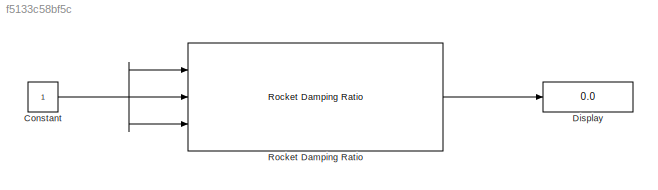
MODEL slx_f5133c58bf5c
KIND model
BLOCK [Constant] Constant
BLOCK [Display] Display
  Decimation = 1
  Ports = [1]
BLOCK [Reference] Rocket  Damping Ratio  REF=rocket_angular_flight_library/Rocket  Damping Ratio
  Ports = [3, 1]
  SourceBlock = rocket_angular_flight_library/Rocket  Damping Ratio
  SourceType = SubSystem
NET Constant:1 -> Rocket  Damping Ratio:1, Rocket  Damping Ratio:2, Rocket  Damping Ratio:3
LINE Rocket  Damping Ratio:1 -> Display:1
note: NET lines group one-source signal fan-out (src -> all destinations, sorted); 1:1 wires keep LINE
